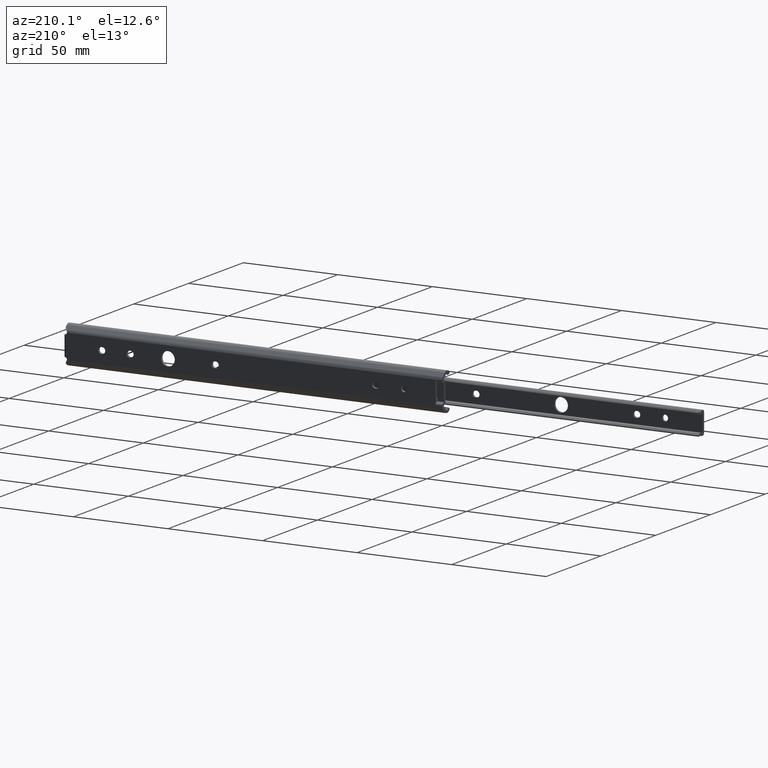
[diagram: clean part render]
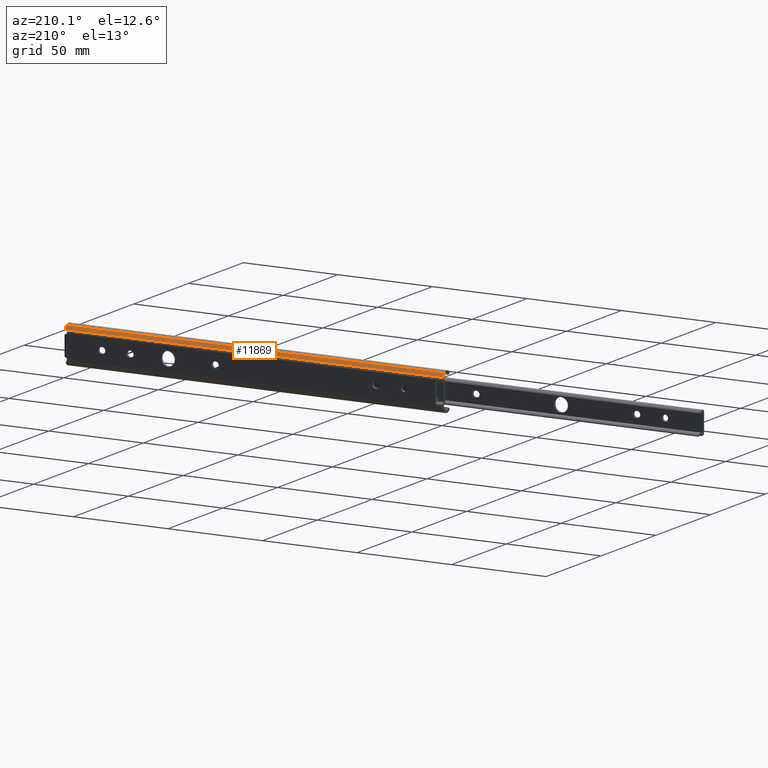
[diagram: same view with one face highlighted and labeled with its STEP entity id]
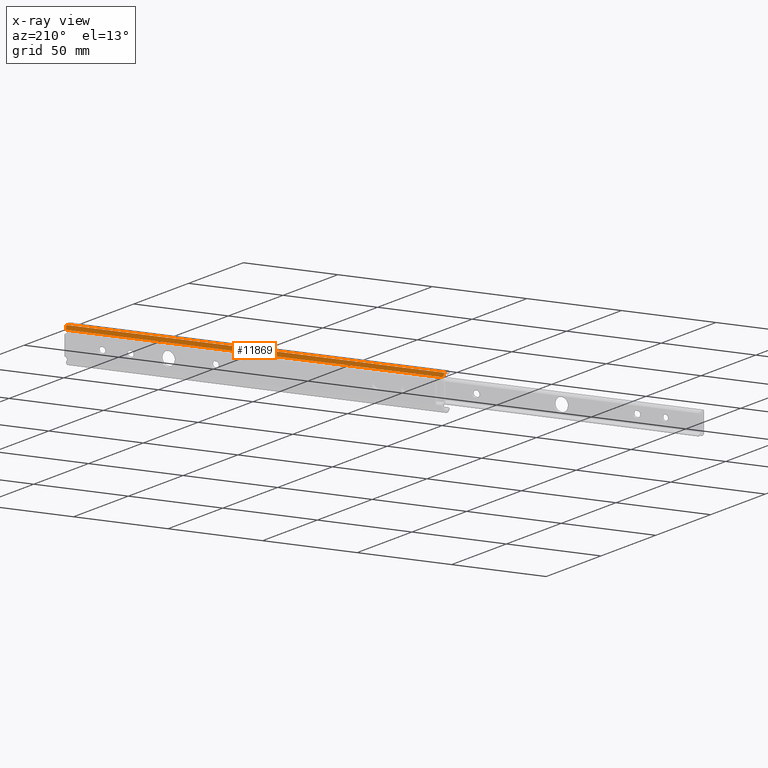
[diagram: x-ray of the same camera — body ghosted, the highlighted face saturated]
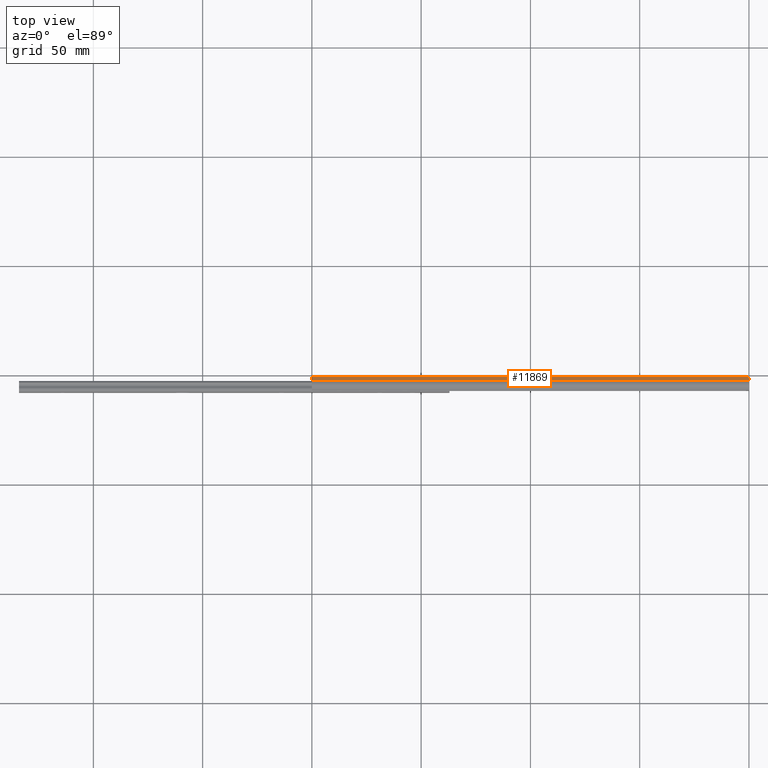
[diagram: same view with one face highlighted and labeled with its STEP entity id]
A machine part, auxiliary view. The second image highlights one B-rep face of the part: STEP entity #11869.
The next image is the same camera in x-ray: the body ghosted, the highlighted face saturated — about 0% of this face is hidden behind the body in this view.
A second angle (top view) of the same face is appended — the face is thin or edge-on in the first view.
In plain terms, the highlighted face is a freeform B-spline surface patch.
Its self-contained STEP definition (entity closure, byte-faithful):
#9891=CARTESIAN_POINT('',(199.159981460542500,-0.607033000000000,7.474195000000000));
#9892=VERTEX_POINT('',#9891);
#9893=CARTESIAN_POINT('',(199.707106890593000,-1.196151636336740,8.021320109406650));
#9894=VERTEX_POINT('',#9893);
#9895=CARTESIAN_POINT('',(199.159981460542500,-0.607033000000000,7.474195000000000));
#9896=CARTESIAN_POINT('',(199.707106890593000,-1.196151636336740,8.021320109406650));
#9897=QUASI_UNIFORM_CURVE('',1,(#9895,#9896),.UNSPECIFIED.,.F.,.U.);
#9898=EDGE_CURVE('',#9892,#9894,#9897,.T.);
#10009=CARTESIAN_POINT('',(200.0,-1.957531415335170,8.728427000000000));
#10010=VERTEX_POINT('',#10009);
#10011=CARTESIAN_POINT('',(200.0,-1.957531415335170,8.728427000000000));
#10012=CARTESIAN_POINT('',(199.999999999999970,-1.511525702522513,8.314213528262183));
#10013=CARTESIAN_POINT('',(199.707106890593000,-1.196151636336740,8.021320109406650));
#10021=(BOUNDED_CURVE()B_SPLINE_CURVE(2,(#10011,#10012,#10013),.UNSPECIFIED.,.F.,.U.)CURVE()GEOMETRIC_REPRESENTATION_ITEM()QUASI_UNIFORM_CURVE()RATIONAL_B_SPLINE_CURVE((1.0,0.923879562116460,1.0))REPRESENTATION_ITEM(''));
#10022=EDGE_CURVE('',#10010,#9894,#10021,.T.);
#10527=CARTESIAN_POINT('',(0.0,-2.466980046918090,9.201560556579119));
#10528=VERTEX_POINT('',#10527);
#10544=CARTESIAN_POINT('',(0.0,-0.607033000000087,7.474195000000000));
#10545=VERTEX_POINT('',#10544);
#10546=CARTESIAN_POINT('',(0.0,-2.466980046918090,9.201560556579119));
#10547=CARTESIAN_POINT('',(0.0,-0.607033000000087,7.474195000000000));
#10548=QUASI_UNIFORM_CURVE('',1,(#10546,#10547),.UNSPECIFIED.,.F.,.U.);
#10549=EDGE_CURVE('',#10528,#10545,#10548,.T.);
#11723=CARTESIAN_POINT('',(199.159981460542500,-0.607033000000000,7.474195000000000));
#11724=CARTESIAN_POINT('',(0.0,-0.607033000000087,7.474195000000000));
#11725=QUASI_UNIFORM_CURVE('',1,(#11723,#11724),.UNSPECIFIED.,.F.,.U.);
#11726=EDGE_CURVE('',#9892,#10545,#11725,.T.);
#11784=CARTESIAN_POINT('',(200.0,-2.466980046918005,9.201560556579020));
#11785=VERTEX_POINT('',#11784);
#11802=CARTESIAN_POINT('',(200.0,-2.466980046918005,9.201560556579020));
#11803=CARTESIAN_POINT('',(200.0,-1.957531415335170,8.728427000000000));
#11804=QUASI_UNIFORM_CURVE('',1,(#11802,#11803),.UNSPECIFIED.,.F.,.U.);
#11805=EDGE_CURVE('',#11785,#10010,#11804,.T.);
#11852=CARTESIAN_POINT('',(-9.989999612361183,-0.514128654095802,7.387913074565043));
#11853=CARTESIAN_POINT('',(-9.989999612361183,-2.559884332910638,9.287842913367774));
#11854=CARTESIAN_POINT('',(209.990004976779200,-0.514128654095802,7.387913074565043));
#11855=CARTESIAN_POINT('',(209.990004976779200,-2.559884332910638,9.287842913367774));
#11856=B_SPLINE_SURFACE_WITH_KNOTS('',1,1,((#11852,#11854),(#11853,#11855)),.UNSPECIFIED.,.F.,.F.,.U.,(2,2),(2,2),(0.0,2.791925803057116),(0.0,219.980004589140410),.UNSPECIFIED.);
#11857=ORIENTED_EDGE('',*,*,#11805,.T.);
#11858=ORIENTED_EDGE('',*,*,#10022,.T.);
#11859=ORIENTED_EDGE('',*,*,#9898,.F.);
#11860=ORIENTED_EDGE('',*,*,#11726,.T.);
#11861=ORIENTED_EDGE('',*,*,#10549,.F.);
#11862=CARTESIAN_POINT('',(200.0,-2.466980046918005,9.201560556579020));
#11863=CARTESIAN_POINT('',(0.0,-2.466980046918090,9.201560556579119));
#11864=QUASI_UNIFORM_CURVE('',1,(#11862,#11863),.UNSPECIFIED.,.F.,.U.);
#11865=EDGE_CURVE('',#11785,#10528,#11864,.T.);
#11866=ORIENTED_EDGE('',*,*,#11865,.F.);
#11867=EDGE_LOOP('',(#11857,#11858,#11859,#11860,#11861,#11866));
#11868=FACE_OUTER_BOUND('',#11867,.T.);
#11869=ADVANCED_FACE('',(#11868),#11856,.T.);